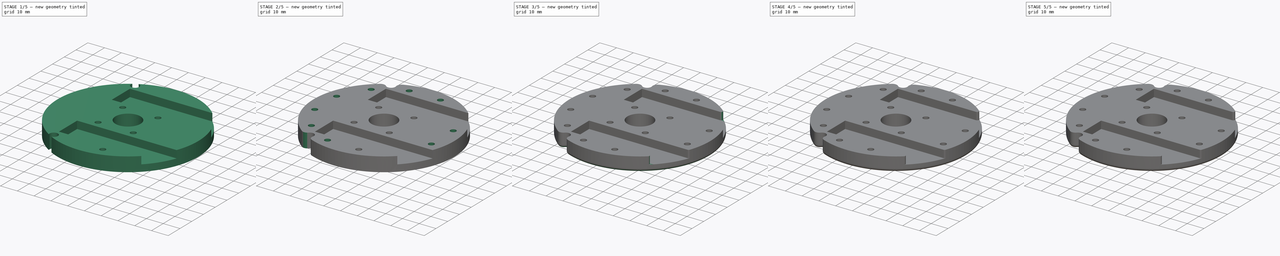
[diagram: build sequence overview — one tinted view per stage of 5, left to right]
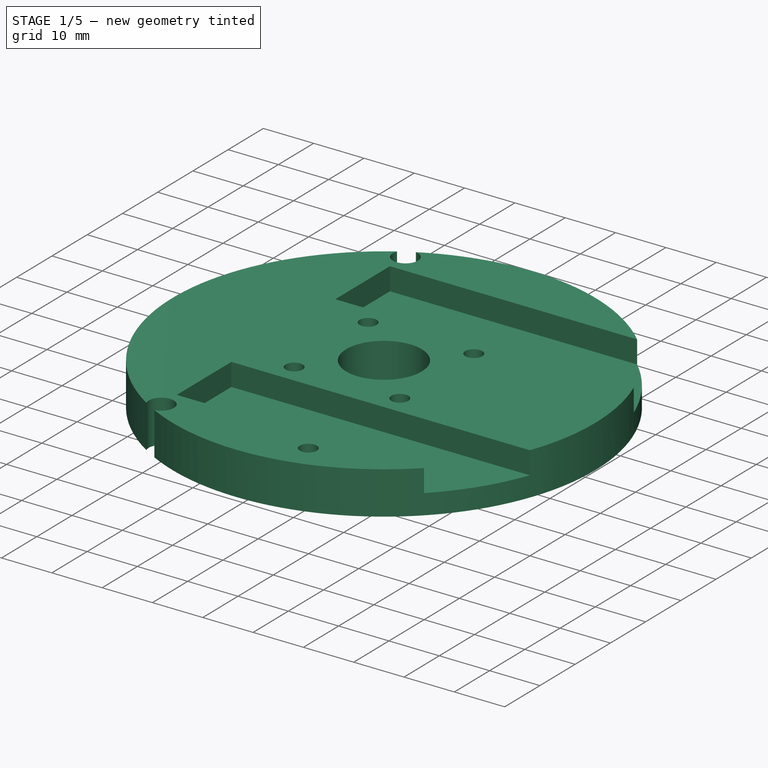
[diagram: stage 1 of 5 — iso view after this stage's code; geometry added in this stage tinted green]
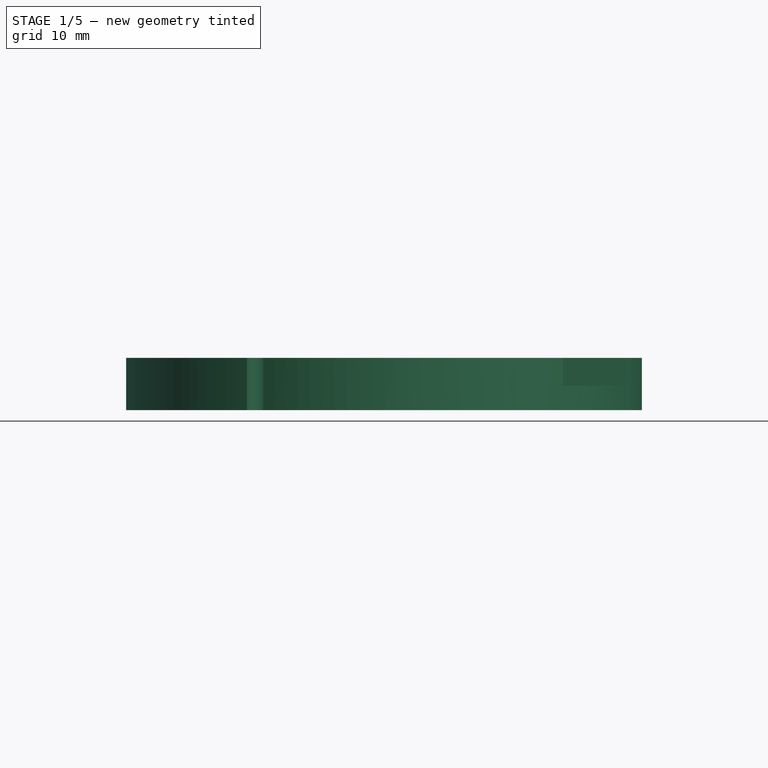
[diagram: stage 1 of 5 — front view after this stage's code; geometry added in this stage tinted green]
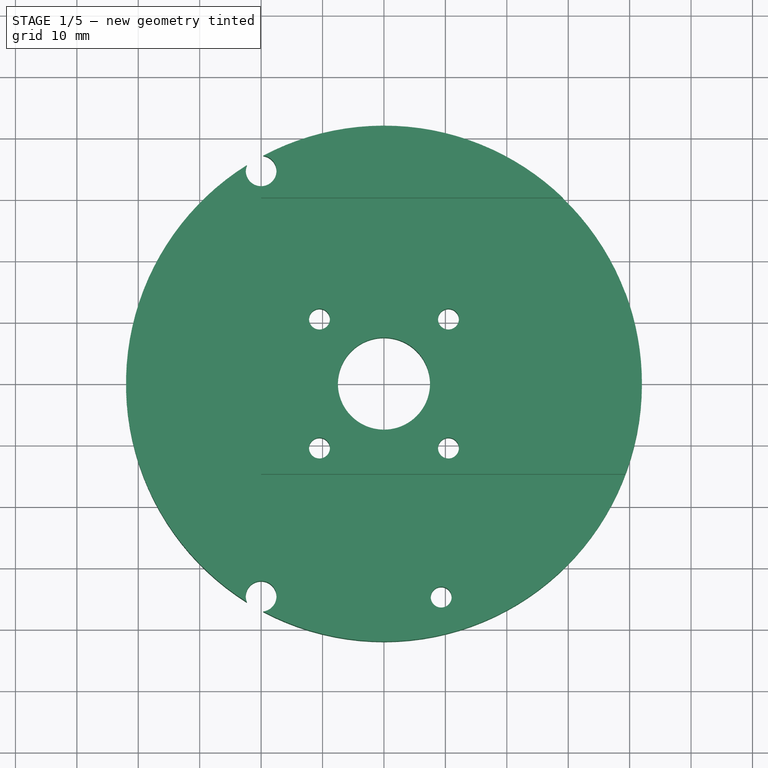
[diagram: stage 1 of 5 — top view after this stage's code; geometry added in this stage tinted green]
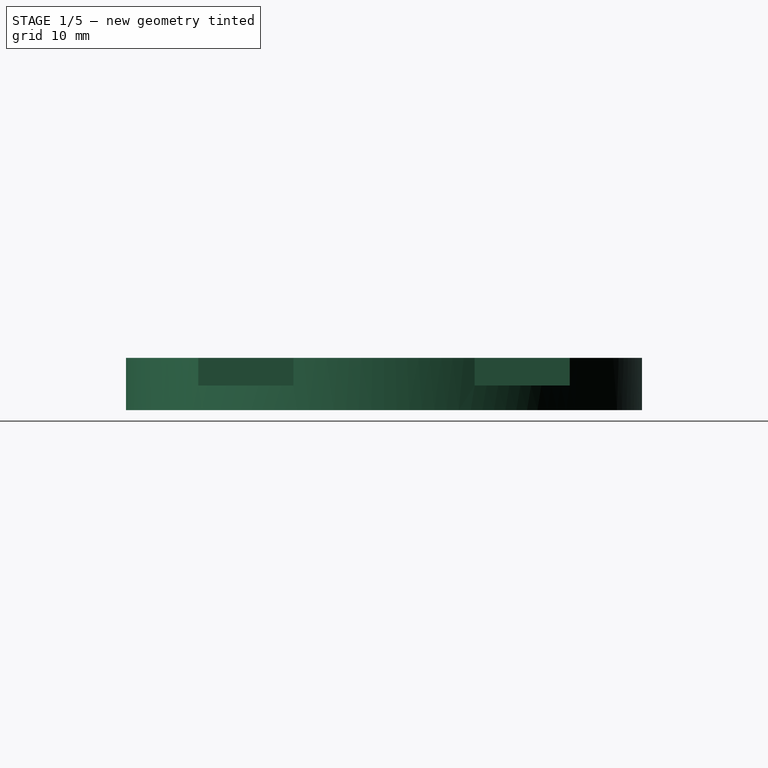
[diagram: stage 1 of 5 — right view after this stage's code; geometry added in this stage tinted green]
FCSTD DOCUMENT  (FreeCAD 0.16R6712 (Git))
Label: UpperKnee3B-15_5mm
License: All rights reserved
LicenseURL: http://en.wikipedia.org/wiki/All_rights_reserved
objects: PartDesign::Chamfer×14, PartDesign::Fillet×9, Sketcher::SketchObject×7, PartDesign::Pocket×5, PartDesign::Pad×2, PartDesign::PolarPattern×1
note: 45 computed .brp shape members not serialized (recipe doc carries the construction recipe); baked Part::Feature solids carry a one-line shape summary decoded from their .brp

FEATURE [Sketcher::SketchObject] Sketch020  label="BaseShape"
  Placement = pos=(0,0,0) rot=(1,0,0;3.14159rad)
  sketch-geometry (7):
    g0: Circle [constr] CenterX=0 CenterY=0 CenterZ=0 NormalX=0 NormalY=0 NormalZ=1 Radius=25
    g1: Circle [constr] CenterX=0 CenterY=0 CenterZ=0 NormalX=0 NormalY=0 NormalZ=1 Radius=7
    g2: Circle [constr] CenterX=0 CenterY=0 CenterZ=0 NormalX=0 NormalY=0 NormalZ=1 Radius=40
    g3: Circle CenterX=0 CenterY=0 CenterZ=0 NormalX=0 NormalY=0 NormalZ=1 Radius=42
    g4: LineSegment StartX=0 StartY=-3 StartZ=0 EndX=0 EndY=3 EndZ=0
    g5: LineSegment StartX=0 StartY=3 StartZ=0 EndX=4 EndY=0 EndZ=0
    g6: LineSegment StartX=4 StartY=0 StartZ=0 EndX=0 EndY=-3 EndZ=0
  constraints (17):
    c: Coincident(g0,g-1)
    c: Coincident(g1,g-1)
    c: Radius(g1) = 7
    c: Radius(g0) = 25
    c: Coincident(g2,g-1)
    c: Radius(g2) = 40
    c: Coincident(g3,g-1)
    c: Radius(g3) = 42
    c: PointOnObject(g4,g-2)
    c: PointOnObject(g4,g-2)
    c: Coincident(g4,g5)
    c: Coincident(g5,g6)
    c: Coincident(g6,g4)
    c: PointOnObject(g5,g-1)
    c: Equal(g6,g5)
    c: DistanceX(g-1,g5) = 4
    c: DistanceY(g4,g4) = 6
FEATURE [PartDesign::Pad] Pad
  Length = 8.5
  Length2 = 100
  Placement = pos=(0,0,0) rot=(1,0,0;3.14159rad)
  Sketch = -> Sketch020
  Type = 0
FEATURE [Sketcher::SketchObject] Sketch  label="RodRecess"
  Support = -> Pad [Face5]
  sketch-geometry (12):
    g0: LineSegment StartX=-20 StartY=30.25 StartZ=0 EndX=40 EndY=30.25 EndZ=0
    g1: LineSegment StartX=40 StartY=30.25 StartZ=0 EndX=40 EndY=14.75 EndZ=0
    g2: LineSegment StartX=40 StartY=14.75 StartZ=0 EndX=-20 EndY=14.75 EndZ=0
    g3: LineSegment StartX=-20 StartY=14.75 StartZ=0 EndX=-20 EndY=30.25 EndZ=0
    g4: LineSegment StartX=-20 StartY=-14.75 StartZ=0 EndX=40 EndY=-14.75 EndZ=0
    g5: LineSegment StartX=40 StartY=-14.75 StartZ=0 EndX=40 EndY=-30.25 EndZ=0
    g6: LineSegment StartX=40 StartY=-30.25 StartZ=0 EndX=-20 EndY=-30.25 EndZ=0
    g7: LineSegment StartX=-20 StartY=-30.25 StartZ=0 EndX=-20 EndY=-14.75 EndZ=0
    g8: LineSegment [constr] StartX=-20 StartY=14.75 StartZ=0 EndX=-20 EndY=-14.75 EndZ=0
    g9: LineSegment [constr] StartX=40 StartY=14.75 StartZ=0 EndX=40 EndY=-14.75 EndZ=0
    g10: GeomPoint [constr] X=-20 Y=22.5 Z=0
    g11: GeomPoint [constr] X=-20 Y=-22.5 Z=0
  constraints (30):
    c: Coincident(g0,g1)
    c: Coincident(g1,g2)
    c: Coincident(g2,g3)
    c: Coincident(g3,g0)
    c: Horizontal(g0)
    c: Horizontal(g2)
    c: Vertical(g1)
    c: Vertical(g3)
    c: Coincident(g4,g5)
    c: Coincident(g5,g6)
    c: Coincident(g6,g7)
    c: Coincident(g7,g4)
    c: Horizontal(g4)
    c: Horizontal(g6)
    c: Vertical(g5)
    c: Vertical(g7)
    c: Coincident(g8,g2)
    c: Coincident(g8,g4)
    c: Vertical(g8)
    c: Coincident(g9,g1)
    c: Coincident(g9,g4)
    c: Vertical(g9)
    c: DistanceY(g2,g0) = 15.5
    c: DistanceX(g0,g0) = 60
    c: Symmetric(g0,g5,g-1)
    c: Symmetric(g1,g4,g-1)
    c: DistanceX(g6,g-1) = 20
    c: Symmetric(g0,g2,g10)
    c: Symmetric(g4,g6,g11)
    c: DistanceY(g11,g10) = 45
FEATURE [PartDesign::Pocket] Pocket
  Length = 4.5
  Placement = pos=(0,0,0) rot=(1,0,0;3.14159rad)
  Sketch = -> Sketch
  Type = 0
FEATURE [Sketcher::SketchObject] Sketch025  label="CentreScrewHoles"
  Placement = pos=(0,0,-8.5) rot=(1,0,0;3.14159rad)
  Support = -> Pocket [Face9]
  sketch-geometry (8):
    g0: LineSegment [constr] StartX=-10.5 StartY=10.5 StartZ=0 EndX=10.5 EndY=10.5 EndZ=0
    g1: LineSegment [constr] StartX=10.5 StartY=10.5 StartZ=0 EndX=10.5 EndY=-10.5 EndZ=0
    g2: LineSegment [constr] StartX=10.5 StartY=-10.5 StartZ=0 EndX=-10.5 EndY=-10.5 EndZ=0
    g3: LineSegment [constr] StartX=-10.5 StartY=-10.5 StartZ=0 EndX=-10.5 EndY=10.5 EndZ=0
    g4: Circle CenterX=-10.5 CenterY=10.5 CenterZ=0 NormalX=0 NormalY=0 NormalZ=1 Radius=1.7
    g5: Circle CenterX=10.5 CenterY=10.5 CenterZ=0 NormalX=0 NormalY=0 NormalZ=1 Radius=1.7
    g6: Circle CenterX=10.5 CenterY=-10.5 CenterZ=0 NormalX=0 NormalY=0 NormalZ=1 Radius=1.7
    g7: Circle CenterX=-10.5 CenterY=-10.5 CenterZ=0 NormalX=0 NormalY=0 NormalZ=1 Radius=1.7
  constraints (19):
    c: Coincident(g0,g1)
    c: Coincident(g1,g2)
    c: Coincident(g2,g3)
    c: Coincident(g3,g0)
    c: Horizontal(g0)
    c: Horizontal(g2)
    c: Vertical(g1)
    c: Vertical(g3)
    c: Symmetric(g0,g2,g-1)
    c: DistanceY(g1,g0) = 21
    c: DistanceX(g0,g0) = 21
    c: Coincident(g4,g0)
    c: Coincident(g6,g1)
    c: Radius(g6) = 1.7
    c: Equal(g6,g7)
    c: Equal(g6,g4)
    c: Equal(g6,g5)
    c: Coincident(g5,g0)
    c: Coincident(g7,g2)
FEATURE [PartDesign::Pocket] Pocket005
  Length = 5
  Placement = pos=(0,0,0) rot=(1,0,0;3.14159rad)
  Sketch = -> Sketch025
  Type = 1
FEATURE [Sketcher::SketchObject] Sketch026  label="OuterMountingHoles001"
  Support = -> Pocket005 [Face2]
  sketch-geometry (17):
    g0: Circle [constr] CenterX=30.8221 CenterY=15.5 CenterZ=0 NormalX=0 NormalY=0 NormalZ=1 Radius=1.7
    g1: Circle [constr] CenterX=0 CenterY=0 CenterZ=0 NormalX=0 NormalY=0 NormalZ=1 Radius=38.6
    g2: Circle [constr] CenterX=0 CenterY=0 CenterZ=0 NormalX=0 NormalY=0 NormalZ=1 Radius=30
    g3: Circle [constr] CenterX=0 CenterY=0 CenterZ=0 NormalX=0 NormalY=0 NormalZ=1 Radius=34.5
    g4: Circle [constr] CenterX=0 CenterY=34.5 CenterZ=0 NormalX=0 NormalY=0 NormalZ=1 Radius=1.7
    g5: Circle CenterX=-17.2814 CenterY=29.8597 CenterZ=0 NormalX=0 NormalY=0 NormalZ=1 Radius=0
    g6: Circle [constr] CenterX=30.8221 CenterY=-15.5 CenterZ=0 NormalX=0 NormalY=0 NormalZ=1 Radius=1.7
    g7: Circle [constr] CenterX=0 CenterY=-34.5 CenterZ=0 NormalX=0 NormalY=0 NormalZ=1 Radius=1.7
    g8: Circle [constr] CenterX=-28.7967 CenterY=-19 CenterZ=0 NormalX=0 NormalY=0 NormalZ=1 Radius=1.7
    g9: Circle [constr] CenterX=-28.7967 CenterY=19 CenterZ=0 NormalX=0 NormalY=0 NormalZ=1 Radius=1.7
    g10: Circle [constr] CenterX=-34.5 CenterY=0 CenterZ=0 NormalX=0 NormalY=0 NormalZ=1 Radius=1.7
    g11: LineSegment [constr] StartX=51.2033 StartY=25 StartZ=0 EndX=51.2033 EndY=-25 EndZ=0
    g12: LineSegment [constr] StartX=0 StartY=34.5 StartZ=0 EndX=0 EndY=25 EndZ=0
    g13: LineSegment [constr] StartX=30.8221 StartY=15.5 StartZ=0 EndX=30.8221 EndY=25 EndZ=0
    g14: LineSegment [constr] StartX=0 StartY=25 StartZ=0 EndX=30.8221 EndY=25 EndZ=0
    g15: Circle CenterX=-20 CenterY=34.641 CenterZ=0 NormalX=0 NormalY=0 NormalZ=1 Radius=2.5
    g16: Circle CenterX=-20 CenterY=-34.641 CenterZ=0 NormalX=0 NormalY=0 NormalZ=1 Radius=2.5
  constraints (40):
    c: Radius(g0) = 1.7
    c: Radius(g1) = 38.6
    c: Radius(g2) = 30
    c: Radius(g3) = 34.5
    c: Equal(g4,g0)
    c: PointOnObject(g9,g3)
    c: Symmetric(g8,g9,g-1)
    c: Symmetric(g4,g7,g-1)
    c: Symmetric(g0,g6,g-1)
    c: Equal(g6,g7)
    c: Equal(g7,g8)
    c: Equal(g8,g9)
    c: Equal(g9,g4)
    c: Coincident(g3,g-1)
    c: Coincident(g2,g-1)
    c: Coincident(g1,g-1)
    c: PointOnObject(g4,g3)
    c: PointOnObject(g0,g3)
    c: DistanceY(g8,g9) = 38
    c: PointOnObject(g10,g3)
    c: Equal(g10,g9)
    c: Vertical(g11)
    c: DistanceX(g9,g11) = 80
    c: Coincident(g12,g4)
    c: Vertical(g12)
    c: Vertical(g13)
    c: Equal(g12,g13)
    c: DistanceY(g6,g0) = 31
    c: Coincident(g13,g0)
    c: PointOnObject(g10,g-1)
    c: PointOnObject(g4,g-2)
    c: Coincident(g14,g12)
    c: Coincident(g14,g13)
    c: Horizontal(g14)
    c: DistanceY(g-1,g12) = 25
    c: Radius(g15) = 2.5
    c: Equal(g15,g16)
    c: Distance(g-1,g15) = 40
    c: Symmetric(g16,g15,g-1)
    c: DistanceX(g15,g4) = 20
FEATURE [PartDesign::Pocket] Pocket006
  Length = 5
  Placement = pos=(0,0,0) rot=(1,0,0;3.14159rad)
  Sketch = -> Sketch026
  Type = 1
FEATURE [Sketcher::SketchObject] Sketch024  label="CenterHole"
  Placement = pos=(0,0,-8.5) rot=(1,0,0;3.14159rad)
  Support = -> Pocket006 [Face3]
  sketch-geometry (1):
    g0: Circle CenterX=0 CenterY=0 CenterZ=0 NormalX=0 NormalY=0 NormalZ=1 Radius=7.5
  constraints (2):
    c: Radius(g0) = 7.5
    c: Coincident(g0,g-1)
FEATURE [PartDesign::Pocket] Pocket009
  Length = 5
  Placement = pos=(0,0,0) rot=(1,0,0;3.14159rad)
  Sketch = -> Sketch024
  Type = 1
FEATURE [Sketcher::SketchObject] Sketch028
  Placement = pos=(0,0,-8.5) rot=(1,0,0;3.14159rad)
  Support = -> Pocket009 [Face3]
  sketch-geometry (3):
    g0: LineSegment [constr] StartX=0 StartY=0 StartZ=0 EndX=9.31749 EndY=34.7733 EndZ=0
    g1: Circle [constr] CenterX=0 CenterY=0 CenterZ=0 NormalX=0 NormalY=0 NormalZ=1 Radius=36
    g2: Circle CenterX=9.31749 CenterY=34.7733 CenterZ=0 NormalX=0 NormalY=0 NormalZ=1 Radius=1.7
  constraints (7):
    c: Coincident(g0,g-1)
    c: Coincident(g1,g-1)
    c: PointOnObject(g0,g1)
    c: Radius(g1) = 36
    c: Coincident(g2,g0)
    c: Radius(g2) = 1.7
    c: Angle(g0,g-2) = 0.261799
FEATURE [PartDesign::Pocket] Pocket008  label="OuterHole"
  Length = 5
  Placement = pos=(0,0,0) rot=(1,0,0;3.14159rad)
  Sketch = -> Sketch028
  Type = 1
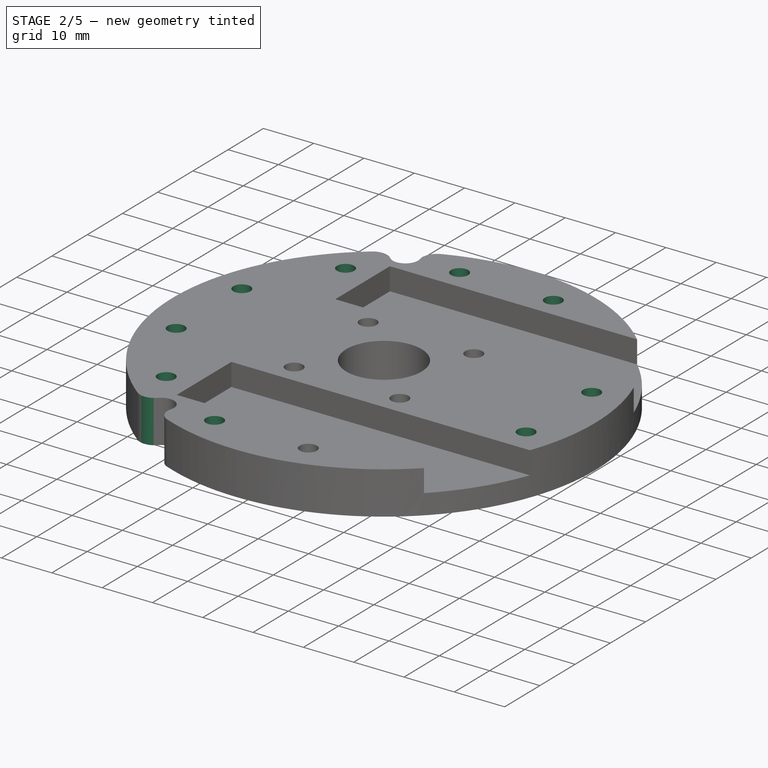
[diagram: stage 2 of 5 — iso view after this stage's code; geometry added in this stage tinted green]
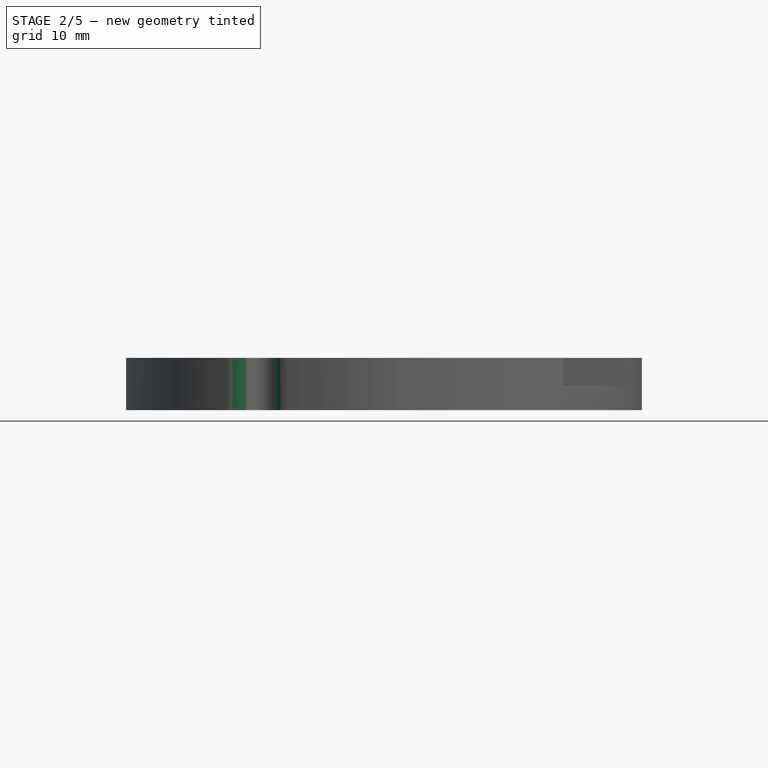
[diagram: stage 2 of 5 — front view after this stage's code; geometry added in this stage tinted green]
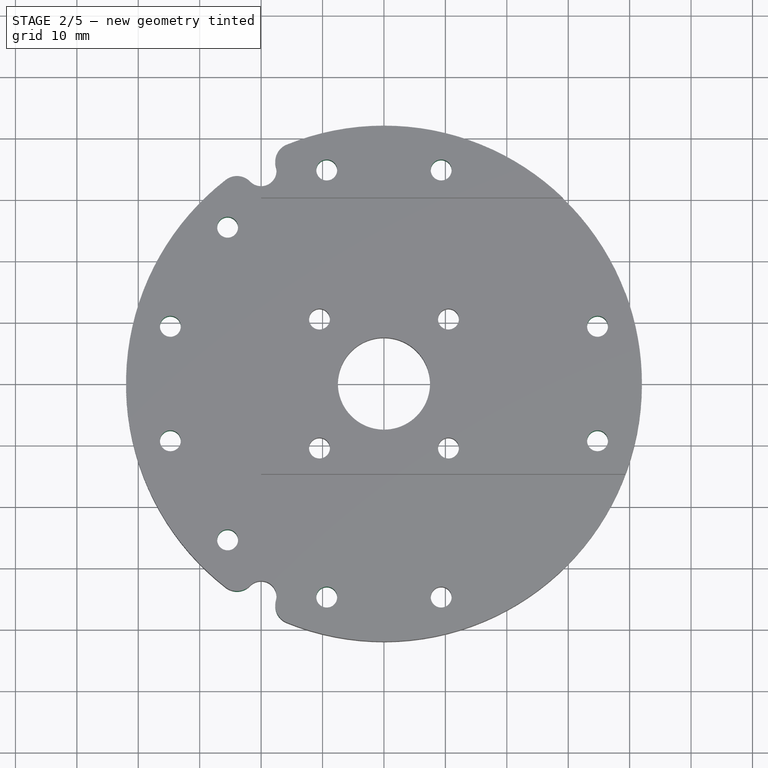
[diagram: stage 2 of 5 — top view after this stage's code; geometry added in this stage tinted green]
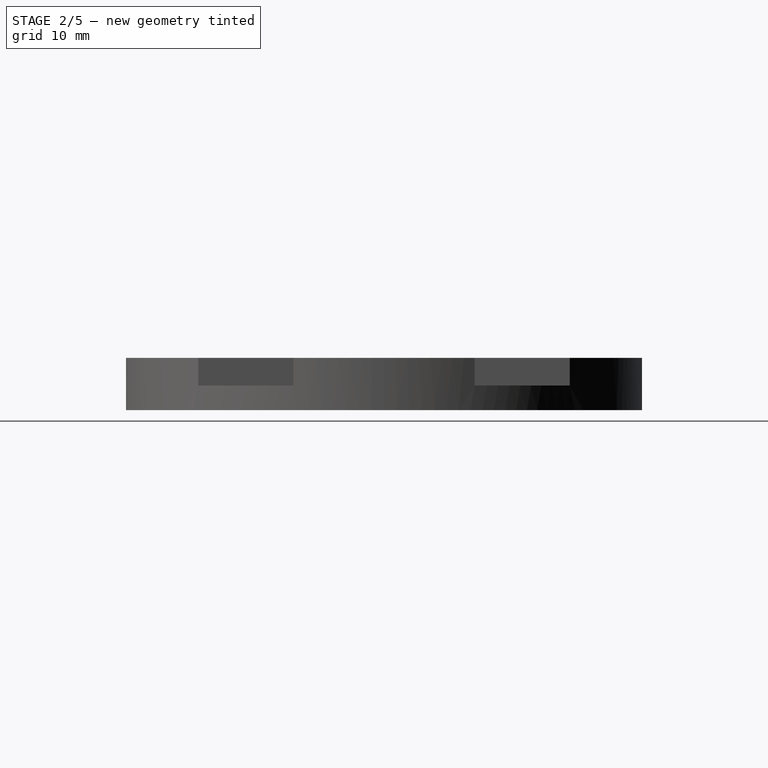
[diagram: stage 2 of 5 — right view after this stage's code; geometry added in this stage tinted green]
FEATURE [PartDesign::PolarPattern] PolarPattern  label="OuterHoles x12"
  Angle = 360
  Axis = -> Sketch028 [N_Axis]
  Occurrences = 12
  Originals = -> [Pocket008]
  Placement = pos=(0,0,0) rot=(1,0,0;3.14159rad)
FEATURE [Sketcher::SketchObject] Sketch029
  Placement = pos=(0,0,-4.5) rot=(0,0,1;0rad)
  Support = -> PolarPattern [Face7]
  sketch-geometry (3):
    g0: Circle CenterX=25.4558 CenterY=25.4558 CenterZ=0 NormalX=0 NormalY=0 NormalZ=1 Radius=3.5
    g1: LineSegment [constr] StartX=0 StartY=0 StartZ=0 EndX=25.4558 EndY=25.4558 EndZ=0
    g2: Circle CenterX=25.4558 CenterY=-25.4558 CenterZ=0 NormalX=0 NormalY=0 NormalZ=1 Radius=3.5
  constraints (7):
    c: Coincident(g1,g-1)
    c: Coincident(g1,g0)
    c: Distance(g-1,g0) = 36
    c: Radius(g0) = 3.5
    c: Angle(g-1,g1) = 0.785398
    c: Symmetric(g0,g2,g-1)
    c: Equal(g2,g0)
FEATURE [PartDesign::Pad] Pad001  label="FinalBeforeFillet"
  Length = 4
  Length2 = 100
  Placement = pos=(0,0,0) rot=(1,0,0;3.14159rad)
  Reversed = true
  Sketch = -> Sketch029
  Type = 0
FEATURE [PartDesign::Fillet] Fillet
  Base = -> Pad001 [Edge79]
  Placement = pos=(0,0,0) rot=(1,0,0;3.14159rad)
  Radius = 3
FEATURE [PartDesign::Fillet] Fillet001
  Base = -> Fillet [Edge32]
  Placement = pos=(0,0,0) rot=(1,0,0;3.14159rad)
  Radius = 3
FEATURE [PartDesign::Fillet] Fillet002
  Base = -> Fillet001 [Edge47]
  Placement = pos=(0,0,0) rot=(1,0,0;3.14159rad)
  Radius = 3
FEATURE [PartDesign::Fillet] Fillet003
  Base = -> Fillet002 [Edge48]
  Placement = pos=(0,0,0) rot=(1,0,0;3.14159rad)
  Radius = 3
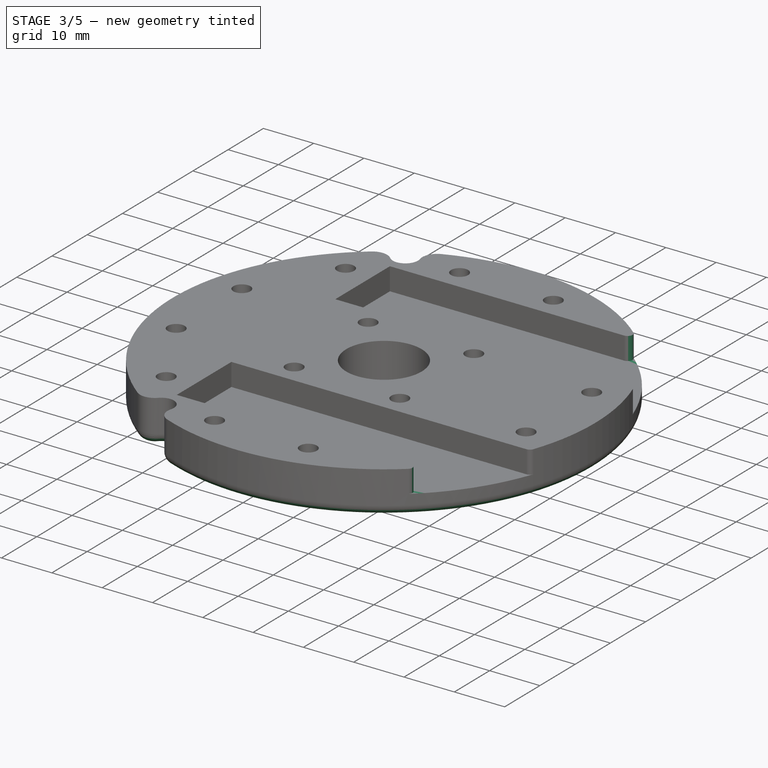
[diagram: stage 3 of 5 — iso view after this stage's code; geometry added in this stage tinted green]
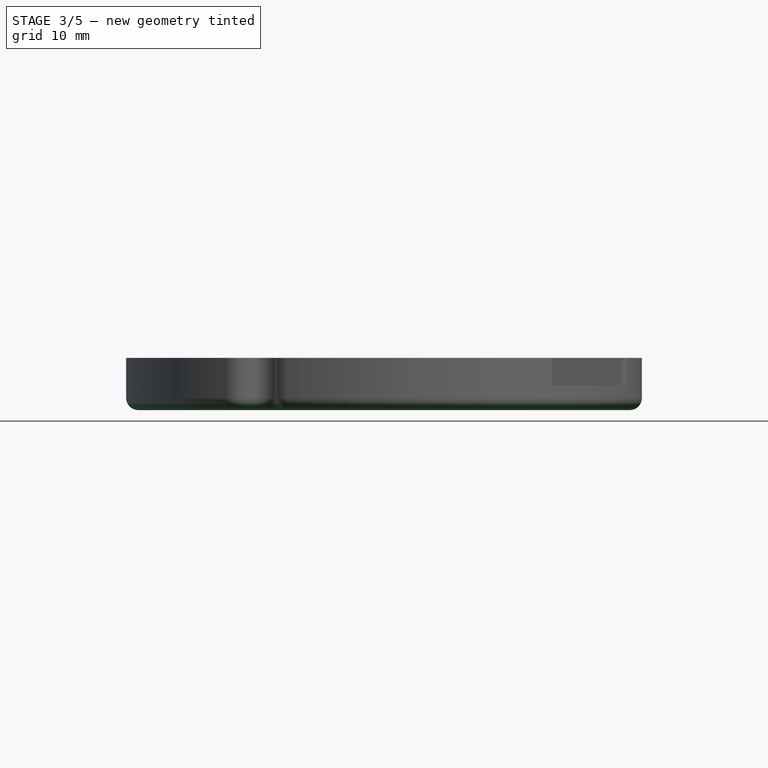
[diagram: stage 3 of 5 — front view after this stage's code; geometry added in this stage tinted green]
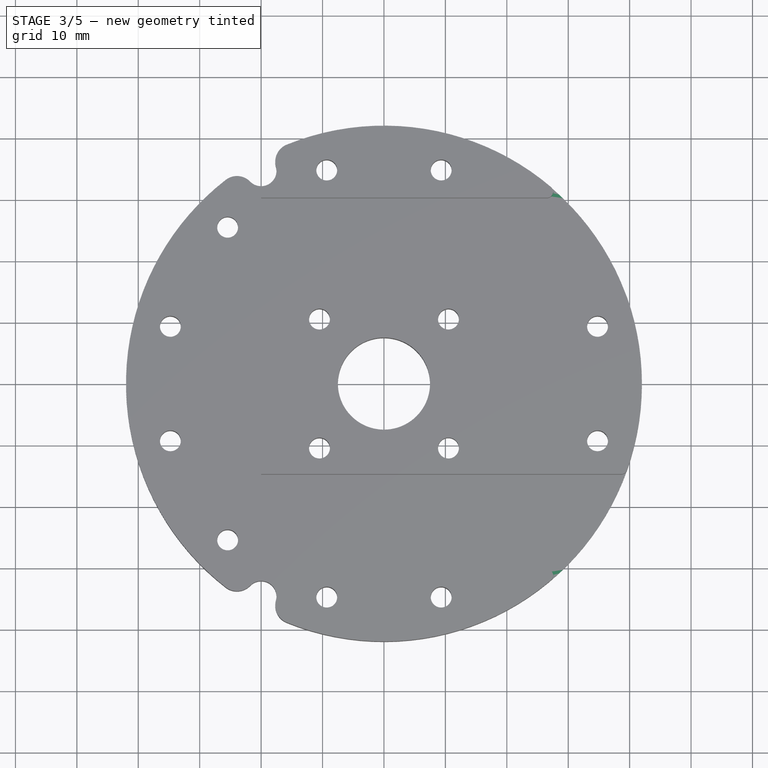
[diagram: stage 3 of 5 — top view after this stage's code; geometry added in this stage tinted green]
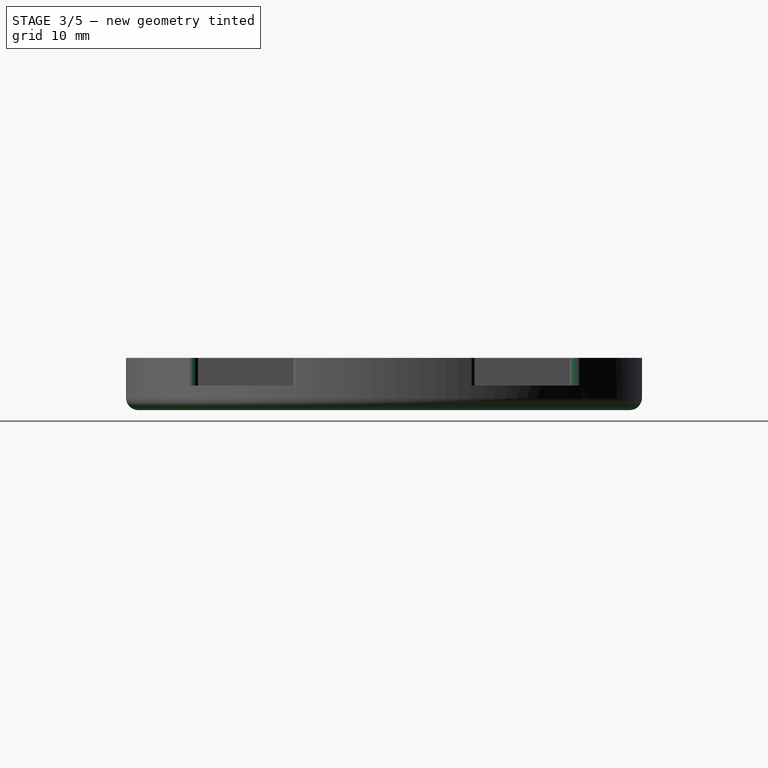
[diagram: stage 3 of 5 — right view after this stage's code; geometry added in this stage tinted green]
FEATURE [PartDesign::Fillet] Fillet004
  Base = -> Fillet003 [Edge4]
  Placement = pos=(0,0,0) rot=(1,0,0;3.14159rad)
  Radius = 2
FEATURE [PartDesign::Fillet] Fillet005
  Base = -> Fillet004 [Edge109]
  Placement = pos=(0,0,0) rot=(1,0,0;3.14159rad)
  Radius = 1
FEATURE [PartDesign::Fillet] Fillet006
  Base = -> Fillet005 [Edge8]
  Placement = pos=(0,0,0) rot=(1,0,0;3.14159rad)
  Radius = 1
FEATURE [PartDesign::Fillet] Fillet007
  Base = -> Fillet006 [Edge49]
  Placement = pos=(0,0,0) rot=(1,0,0;3.14159rad)
  Radius = 1
FEATURE [PartDesign::Fillet] Fillet008
  Base = -> Fillet007 [Edge50]
  Placement = pos=(0,0,0) rot=(1,0,0;3.14159rad)
  Radius = 1
FEATURE [PartDesign::Chamfer] Chamfer
  Base = -> Fillet008 [Edge97]
  Placement = pos=(0,0,0) rot=(1,0,0;3.14159rad)
  Size = 1.7
FEATURE [PartDesign::Chamfer] Chamfer001
  Base = -> Chamfer [Edge63]
  Placement = pos=(0,0,0) rot=(1,0,0;3.14159rad)
  Size = 1.7
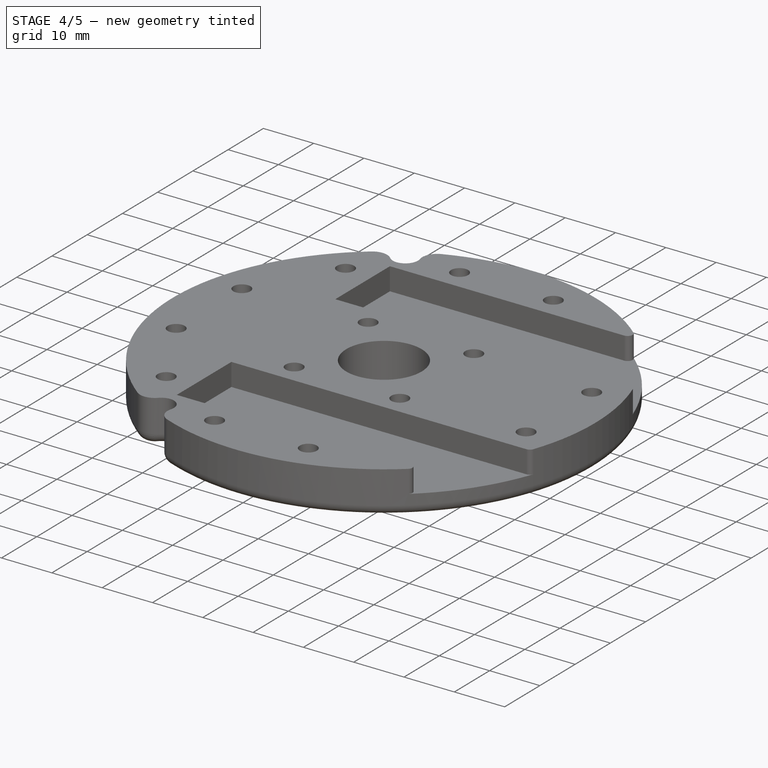
[diagram: stage 4 of 5 — iso view after this stage's code; geometry added in this stage tinted green]
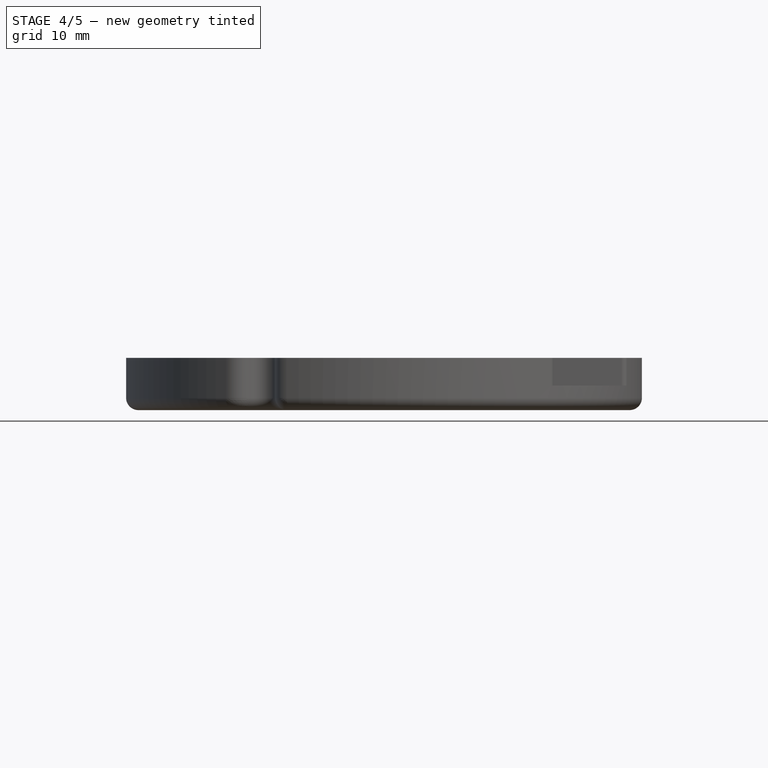
[diagram: stage 4 of 5 — front view after this stage's code; geometry added in this stage tinted green]
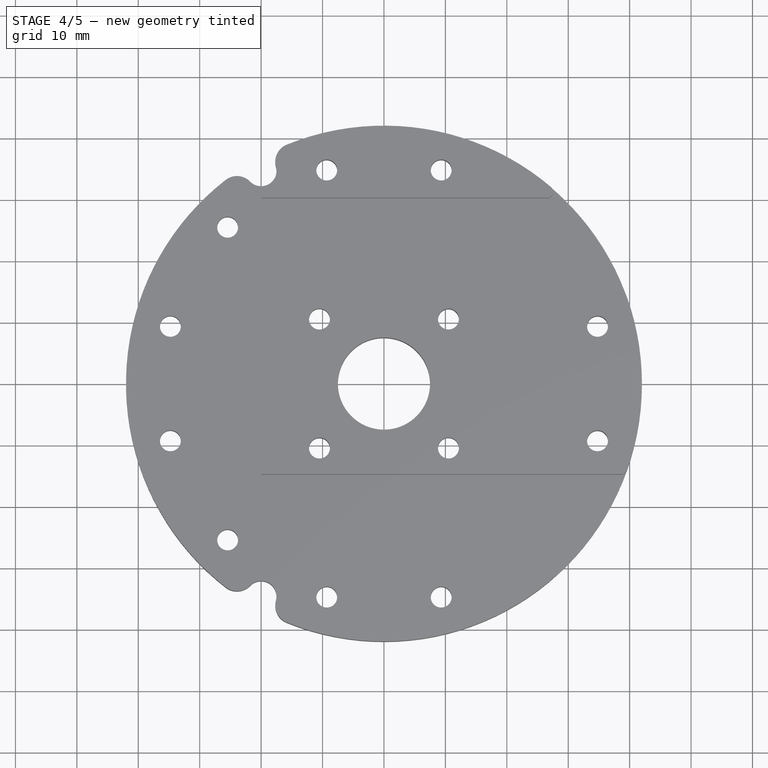
[diagram: stage 4 of 5 — top view after this stage's code; geometry added in this stage tinted green]
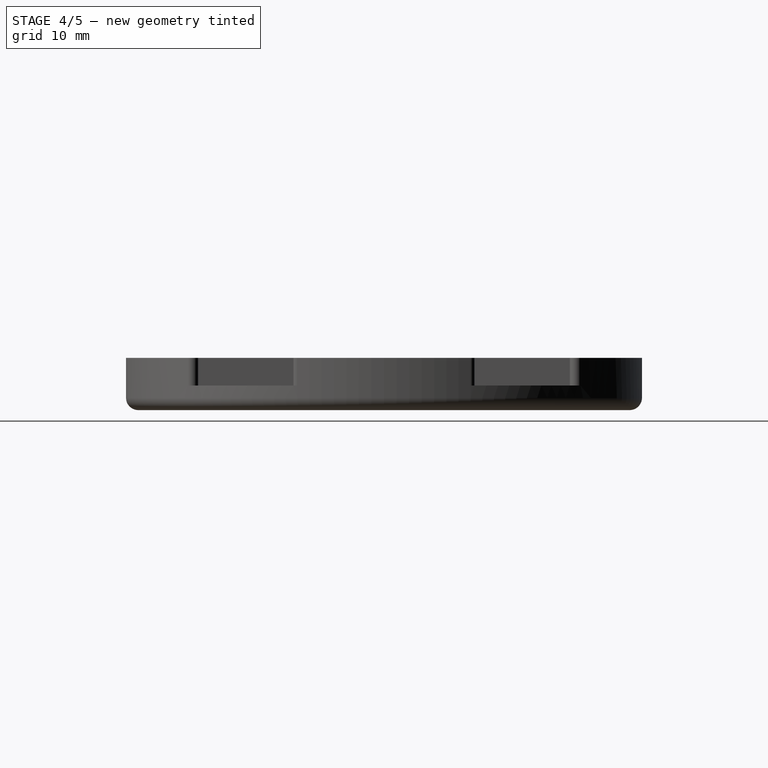
[diagram: stage 4 of 5 — right view after this stage's code; geometry added in this stage tinted green]
FEATURE [PartDesign::Chamfer] Chamfer002
  Base = -> Chamfer001 [Edge28]
  Placement = pos=(0,0,0) rot=(1,0,0;3.14159rad)
  Size = 1.7
FEATURE [PartDesign::Chamfer] Chamfer003
  Base = -> Chamfer002 [Edge28]
  Placement = pos=(0,0,0) rot=(1,0,0;3.14159rad)
  Size = 1.7
FEATURE [PartDesign::Chamfer] Chamfer004
  Base = -> Chamfer003 [Edge27]
  Placement = pos=(0,0,0) rot=(1,0,0;3.14159rad)
  Size = 1.7
FEATURE [PartDesign::Chamfer] Chamfer005
  Base = -> Chamfer004 [Edge27]
  Placement = pos=(0,0,0) rot=(1,0,0;3.14159rad)
  Size = 1.7
FEATURE [PartDesign::Chamfer] Chamfer006
  Base = -> Chamfer005 [Edge27]
  Placement = pos=(0,0,0) rot=(1,0,0;3.14159rad)
  Size = 1.7
FEATURE [PartDesign::Chamfer] Chamfer007
  Base = -> Chamfer006 [Edge21]
  Placement = pos=(0,0,0) rot=(1,0,0;3.14159rad)
  Size = 1.7
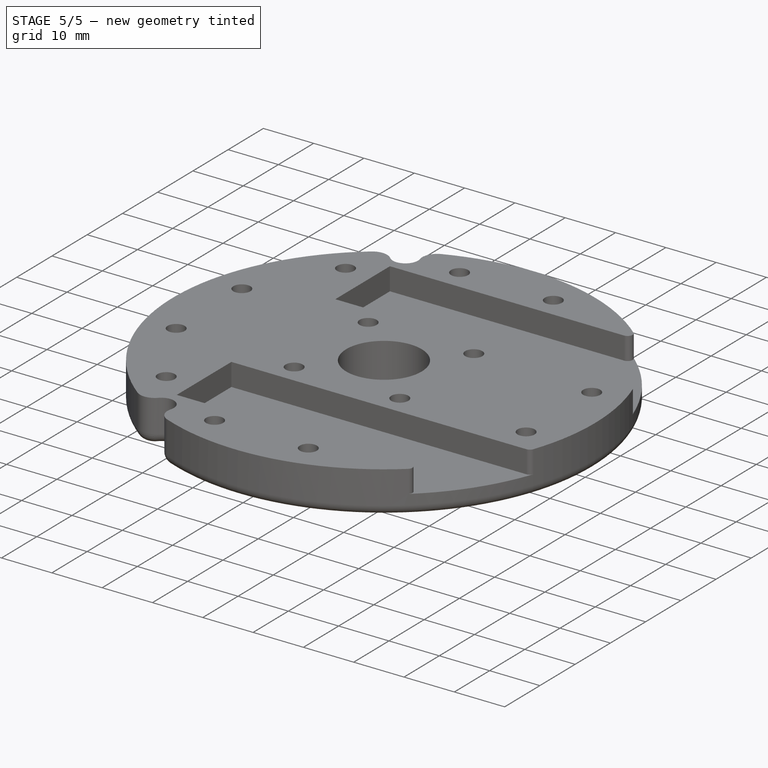
[diagram: stage 5 of 5 — iso view after this stage's code; geometry added in this stage tinted green]
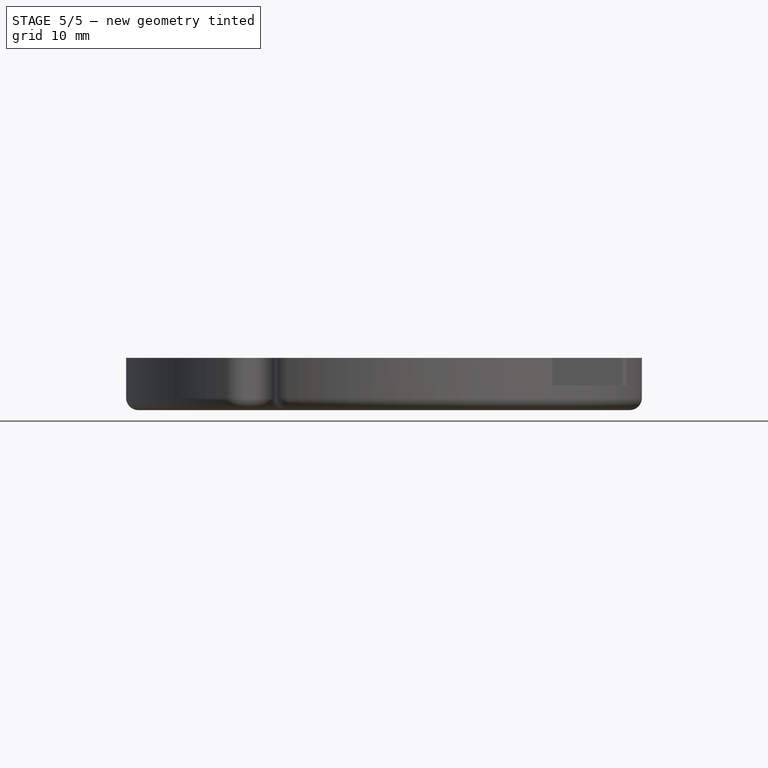
[diagram: stage 5 of 5 — front view after this stage's code; geometry added in this stage tinted green]
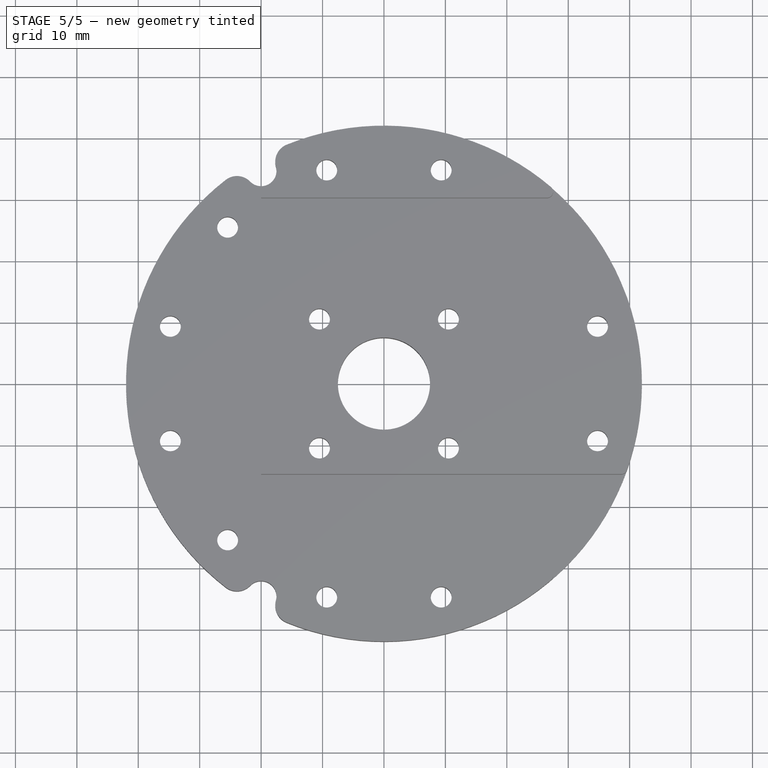
[diagram: stage 5 of 5 — top view after this stage's code; geometry added in this stage tinted green]
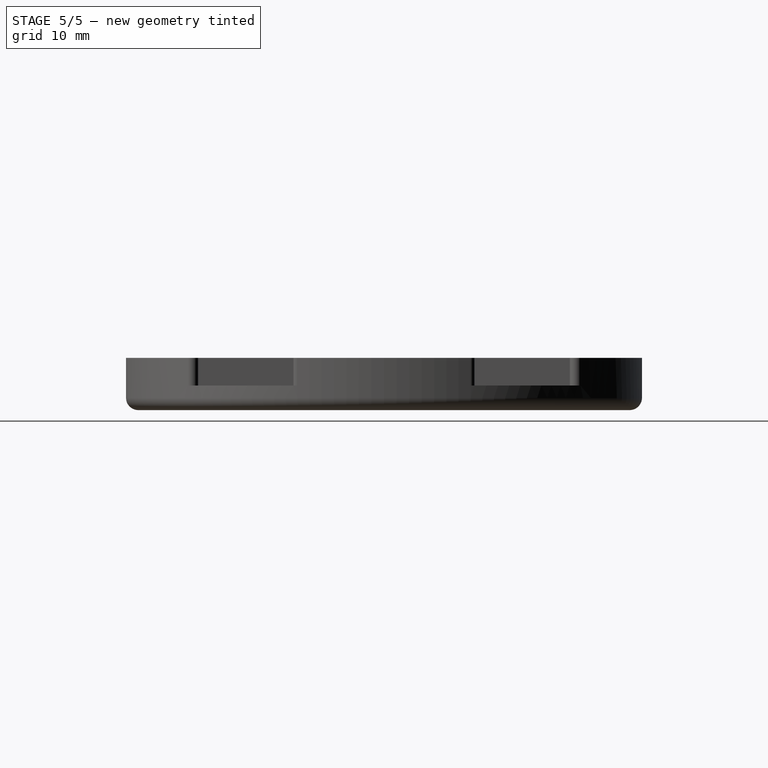
[diagram: stage 5 of 5 — right view after this stage's code; geometry added in this stage tinted green]
FEATURE [PartDesign::Chamfer] Chamfer008
  Base = -> Chamfer007 [Edge26]
  Placement = pos=(0,0,0) rot=(1,0,0;3.14159rad)
  Size = 1.7
FEATURE [PartDesign::Chamfer] Chamfer009
  Base = -> Chamfer008 [Edge24]
  Placement = pos=(0,0,0) rot=(1,0,0;3.14159rad)
  Size = 1.7
FEATURE [PartDesign::Chamfer] Chamfer010
  Base = -> Chamfer009 [Edge26]
  Placement = pos=(0,0,0) rot=(1,0,0;3.14159rad)
  Size = 1.7
FEATURE [PartDesign::Chamfer] Chamfer011
  Base = -> Chamfer010 [Edge25]
  Placement = pos=(0,0,0) rot=(1,0,0;3.14159rad)
  Size = 1.7
FEATURE [PartDesign::Chamfer] Chamfer012
  Base = -> Chamfer011 [Edge25]
  Placement = pos=(0,0,0) rot=(1,0,0;3.14159rad)
  Size = 1.7
FEATURE [PartDesign::Chamfer] Chamfer013
  Base = -> Chamfer012 [Edge25]
  Placement = pos=(0,0,0) rot=(1,0,0;3.14159rad)
  Size = 1.7
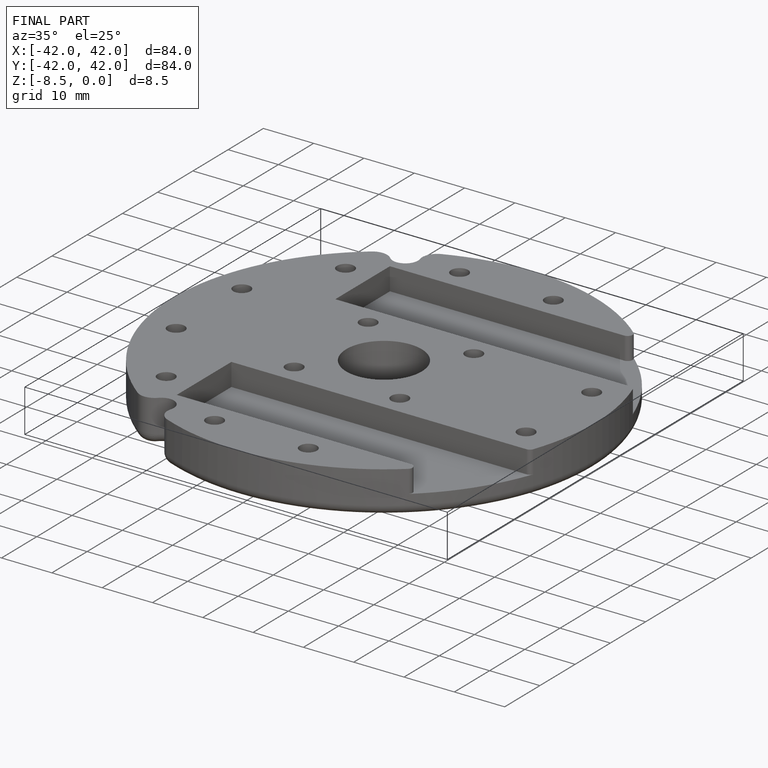
[diagram: finished part — iso view with bounding-box wireframe]
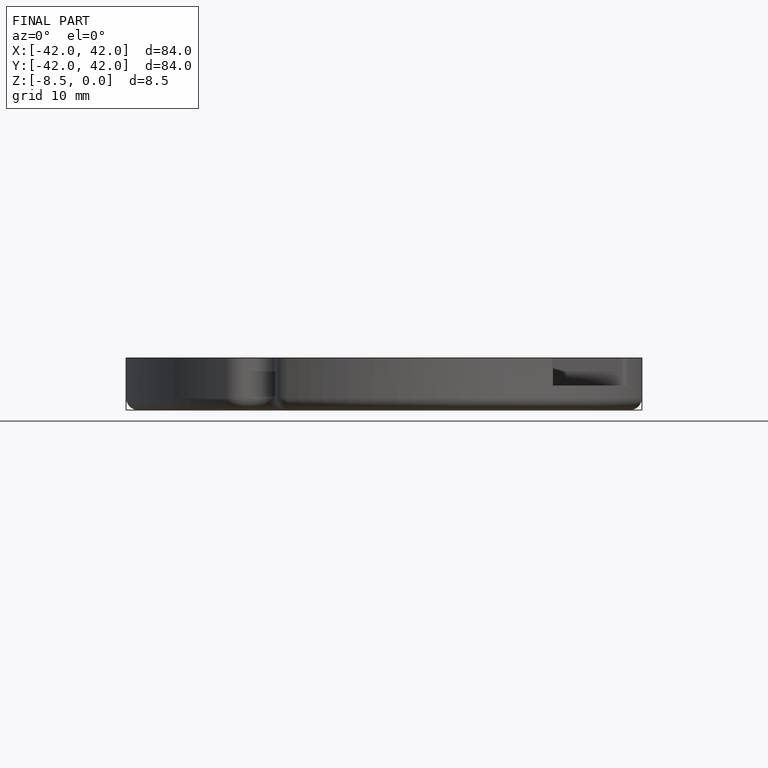
[diagram: finished part — front view with bounding-box wireframe]
